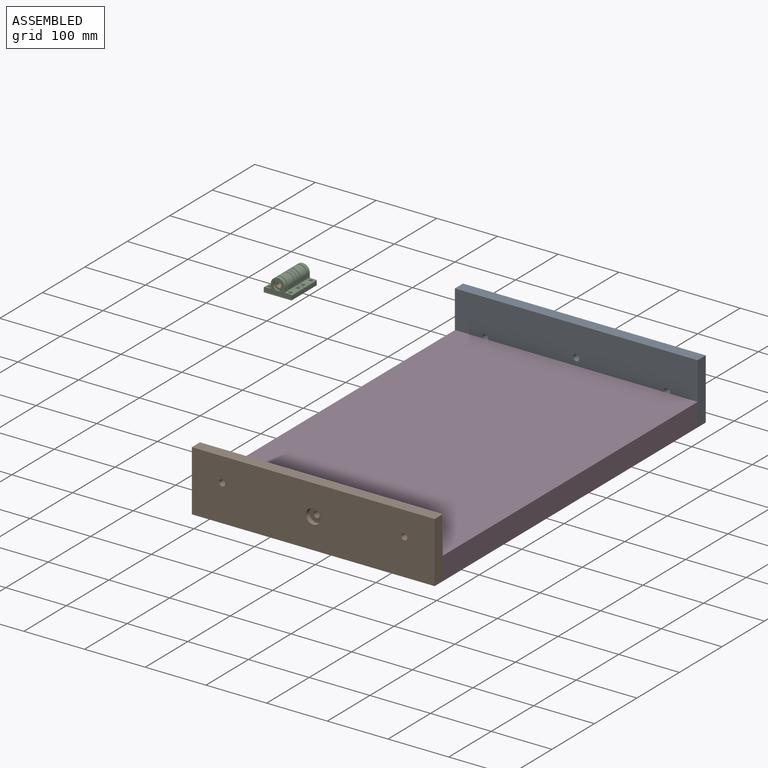
[diagram: assembled view]
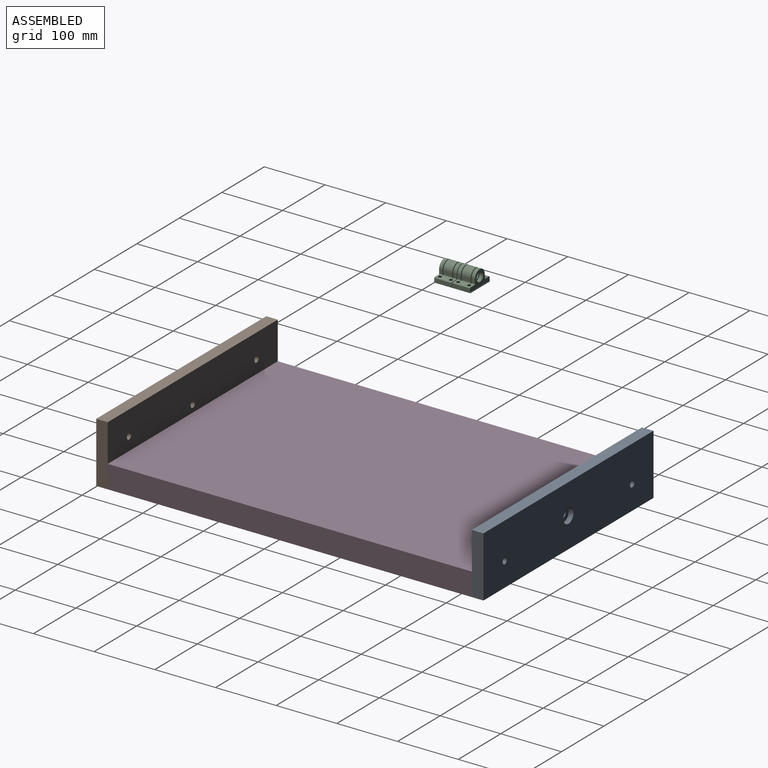
[diagram: assembled view, second angle]
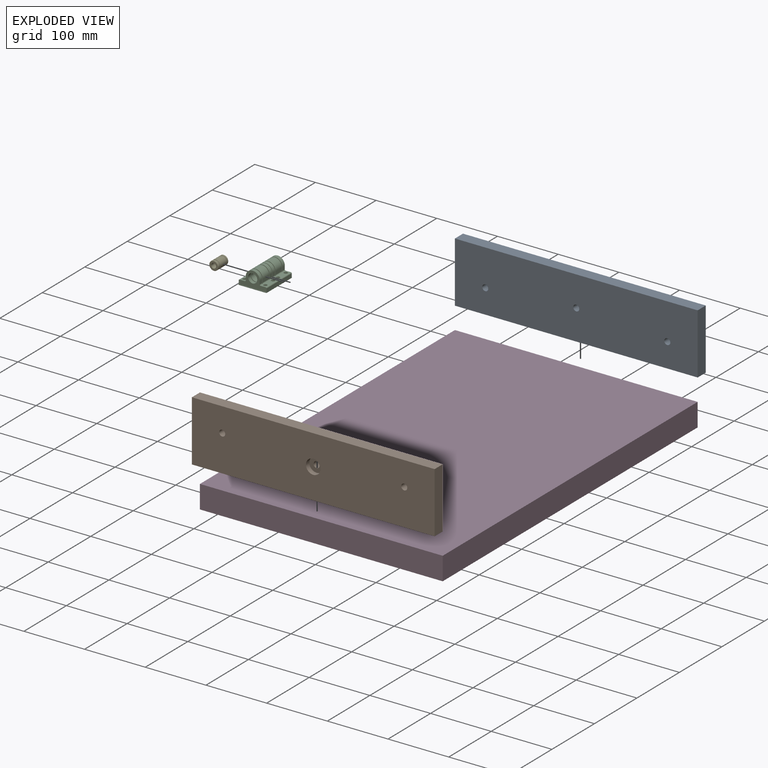
[diagram: exploded view]
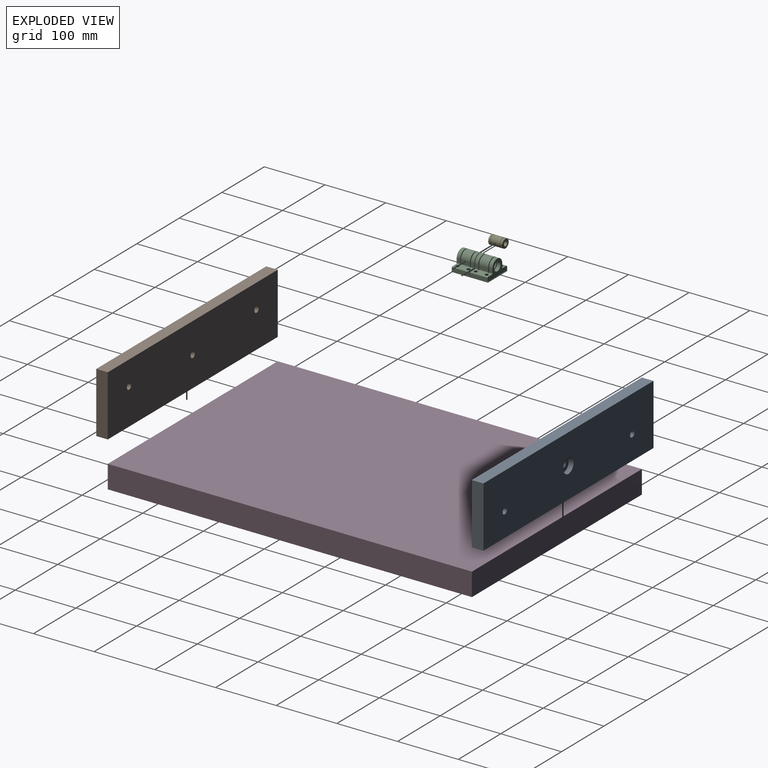
[diagram: exploded view, second angle]
ASSEMBLY  parts=5 mates=7
PART A: 11 faces, bbox 400x19x100 mm
  f0: cylinder r=5mm len=11mm, axis (0,1,0), area 345.6mm2, adj f8,f10
  f1: plane 400x19mm, normal (0,0,1), area 7600mm2, adj f2,f6,f7,f8
  f2: plane 100x19mm, normal (-1,0,0), area 1900mm2, adj f1,f3,f7,f8
  f3: plane 400x19mm, normal (0,0,-1), area 7600mm2, adj f2,f6,f7,f8
  f4: cylinder r=5mm len=19mm, axis (0,1,0), area 596.9mm2, adj f7,f8
  f5: cylinder r=5mm len=19mm, axis (0,1,0), area 596.9mm2, adj f7,f8
  f6: plane 100x19mm, normal (1,0,0), area 1900mm2, adj f1,f3,f7,f8
  f7: plane 400x100mm, normal (0,-1,0), area 39390.5mm2, adj f1,f2,f3,f4,f5,f6,f9
  f8: plane 400x100mm, normal (0,1,0), area 39764.4mm2, adj f0,f1,f2,f3,f4,f5,f6
  f9: cylinder r=12mm len=24mm, axis (0,-1,0), area 603.2mm2, adj f7,f10
  f10: plane 24x24mm, normal (0,-1,0), area 373.8mm2, adj f0,f9
PART B: same geometry as A
PART C: 128 faces, bbox 46x60x27.1 mm
  f0: plane 60x6.5mm, normal (1,0,0), area 379mm2, adj f5,f11,f19,f23,f24,f39,f40,f75
  f1: plane 6.03x5.75mm, normal (1,0,0), area 34.6mm2, adj f2,f4,f20,f24
  f2: cylinder r=11.53mm len=23.05mm, axis (0,-1,0), area 208.2mm2, adj f1,f20,f24,f42
  f3: cylinder r=7.52mm len=15.05mm, axis (0,-1,0), area 271.9mm2, adj f20,f24
  f4: cylinder r=1.5mm len=29mm, axis (0,-1,0), area 65.1mm2, adj f1,f7,f9,f20,f21,f22,f24,f25
  f5: plane 60x46mm, normal (0,0,-1), area 2570.9mm2, adj f0,f10,f11,f20,f21,f22,f28,f36
  f6: cylinder r=11.53mm len=23.05mm, axis (0,-1,0), area 539.5mm2, adj f7,f22,f38,f44
  f7: plane 14.9x6.03mm, normal (1,0,0), area 89.8mm2, adj f4,f6,f22,f38
  f8: cylinder r=7.52mm len=15.05mm, axis (0,-1,0), area 704.5mm2, adj f22,f38
  f9: plane 29x8.48mm, normal (0,0,1), area 192.4mm2, adj f4,f12,f13,f14,f15,f16,f17,f19
  f10: cylinder r=1.6mm len=3.2mm, axis (0,0,-1), area 30.2mm2, adj f5,f18
  f11: plane 46x1mm, normal (0,1,0), area 46mm2, adj f0,f5,f23,f41
  f12: plane 5x2.78mm, normal (-0.87,-0.5,0), area 16mm2, adj f9,f13,f17,f18
  f13: plane 5x3.2mm, normal (0,-1,0), area 16mm2, adj f9,f12,f14,f18
  f14: plane 5x2.78mm, normal (0.87,-0.5,0), area 16mm2, adj f9,f13,f15,f18
  f15: plane 5x2.78mm, normal (0.87,0.5,0), area 16mm2, adj f9,f14,f16,f18
  f16: plane 5x3.2mm, normal (0,1,0), area 16mm2, adj f9,f15,f17,f18
  f17: plane 5x2.78mm, normal (-0.87,0.5,0), area 16mm2, adj f9,f12,f16,f18
  f18: plane 6.41x5.55mm, normal (0,0,1), area 18.6mm2, adj f10,f12,f13,f14,f15,f16,f17
  f19: cylinder r=1.5mm len=29mm, axis (0,-1,0), area 68.3mm2, adj f0,f9,f24,f40
  f20: plane 27.05x24mm, normal (0,-1,0), area 396.9mm2, adj f1,f2,f3,f4,f5,f21,f42,f43
  f21: plane 8.41x1.3mm, normal (-1,0,0), area 10.9mm2, adj f4,f5,f20,f22
  f22: plane 27.05x24mm, normal (0,1,0), area 396.9mm2, adj f4,f5,f6,f7,f8,f21,f43,f44
  f23: plane 46x0.5mm, normal (0,0,1), area 23mm2, adj f0,f11,f24,f41
  f24: plane 46x26.05mm, normal (0,1,0), area 526.2mm2, adj f0,f1,f2,f3,f4,f9,f19,f23
  f25: plane 6.03x5.75mm, normal (1,0,0), area 34.6mm2, adj f4,f26,f36,f40
  f26: cylinder r=11.53mm len=23.05mm, axis (0,1,0), area 208.2mm2, adj f25,f36,f40,f56
  f27: cylinder r=7.52mm len=15.05mm, axis (0,1,0), area 271.9mm2, adj f36,f40
  f28: cylinder r=1.6mm len=3.2mm, axis (0,0,-1), area 30.2mm2, adj f5,f35
  f29: plane 5x2.78mm, normal (-0.87,0.5,0), area 16mm2, adj f9,f30,f34,f35
  f30: plane 5x3.2mm, normal (0,1,0), area 16mm2, adj f9,f29,f31,f35
  f31: plane 5x2.78mm, normal (0.87,0.5,0), area 16mm2, adj f9,f30,f32,f35
  f32: plane 5x2.78mm, normal (0.87,-0.5,0), area 16mm2, adj f9,f31,f33,f35
  f33: plane 5x3.2mm, normal (0,-1,0), area 16mm2, adj f9,f32,f34,f35
  f34: plane 5x2.78mm, normal (-0.87,-0.5,0), area 16mm2, adj f9,f29,f33,f35
  f35: plane 6.41x5.55mm, normal (0,0,1), area 18.6mm2, adj f28,f29,f30,f31,f32,f33,f34
  f36: plane 27.05x24mm, normal (0,1,0), area 396.9mm2, adj f4,f5,f25,f26,f27,f37,f43,f56
  f37: plane 8.41x1.3mm, normal (-1,0,0), area 10.9mm2, adj f4,f5,f36,f38
  f38: plane 27.05x24mm, normal (0,-1,0), area 396.9mm2, adj f4,f5,f6,f7,f8,f37,f43,f44
  f39: plane 46x1mm, normal (0,0,1), area 46mm2, adj f0,f40,f41,f103
  f40: plane 46x26.05mm, normal (0,-1,0), area 526.2mm2, adj f0,f4,f9,f19,f25,f26,f27,f39
  f41: plane 60x6.5mm, normal (-1,0,0), area 379mm2, adj f5,f11,f23,f24,f39,f40,f54,f75
  f42: plane 6.03x5.75mm, normal (-1,0,0), area 34.6mm2, adj f2,f20,f24,f43
  f43: cylinder r=1.5mm len=29mm, axis (0,-1,0), area 65.1mm2, adj f20,f22,f24,f36,f38,f40,f42,f44
  f44: plane 14.9x6.03mm, normal (-1,0,0), area 89.8mm2, adj f6,f22,f38,f43
  f45: plane 29x8.48mm, normal (0,0,1), area 192.4mm2, adj f24,f40,f43,f47,f48,f49,f50,f51
  f46: cylinder r=1.6mm len=3.2mm, axis (0,0,-1), area 30.2mm2, adj f5,f53
  f47: plane 5x2.78mm, normal (0.87,-0.5,0), area 16mm2, adj f45,f48,f52,f53
  f48: plane 5x3.2mm, normal (0,-1,0), area 16mm2, adj f45,f47,f49,f53
  f49: plane 5x2.78mm, normal (-0.87,-0.5,0), area 16mm2, adj f45,f48,f50,f53
  f50: plane 5x2.78mm, normal (-0.87,0.5,0), area 16mm2, adj f45,f49,f51,f53
  f51: plane 5x3.2mm, normal (0,1,0), area 16mm2, adj f45,f50,f52,f53
  f52: plane 5x2.78mm, normal (0.87,0.5,0), area 16mm2, adj f45,f47,f51,f53
  f53: plane 6.41x5.55mm, normal (0,0,1), area 18.6mm2, adj f46,f47,f48,f49,f50,f51,f52
  f54: cylinder r=1.5mm len=29mm, axis (0,-1,0), area 68.3mm2, adj f24,f40,f41,f45
  f55: plane 8.41x1.3mm, normal (1,0,0), area 10.9mm2, adj f5,f20,f22,f43
  f56: plane 6.03x5.75mm, normal (-1,0,0), area 34.6mm2, adj f26,f36,f40,f43
  f57: cylinder r=1.6mm len=3.2mm, axis (0,0,-1), area 30.2mm2, adj f5,f64
  f58: plane 5x2.78mm, normal (0.87,0.5,0), area 16mm2, adj f45,f59,f63,f64
  f59: plane 5x3.2mm, normal (0,1,0), area 16mm2, adj f45,f58,f60,f64
  f60: plane 5x2.78mm, normal (-0.87,0.5,0), area 16mm2, adj f45,f59,f61,f64
  f61: plane 5x2.78mm, normal (-0.87,-0.5,0), area 16mm2, adj f45,f60,f62,f64
  f62: plane 5x3.2mm, normal (0,-1,0), area 16mm2, adj f45,f61,f63,f64
  f63: plane 5x2.78mm, normal (0.87,-0.5,0), area 16mm2, adj f45,f58,f62,f64
  f64: plane 6.41x5.55mm, normal (0,0,1), area 18.6mm2, adj f57,f58,f59,f60,f61,f62,f63
  f65: plane 8.41x1.3mm, normal (1,0,0), area 10.9mm2, adj f5,f36,f38,f43
  f66: plane 6.03x5.75mm, normal (1,0,0), area 34.6mm2, adj f67,f69,f84,f88
  f67: cylinder r=11.53mm len=23.05mm, axis (0,1,0), area 208.2mm2, adj f66,f84,f88,f104
  f68: cylinder r=7.52mm len=15.05mm, axis (0,1,0), area 271.9mm2, adj f84,f88
  f69: cylinder r=1.5mm len=29mm, axis (0,1,0), area 65.1mm2, adj f66,f71,f73,f84,f85,f86,f88,f89
  f70: cylinder r=11.53mm len=23.05mm, axis (0,1,0), area 539.5mm2, adj f71,f86,f102,f106
  f71: plane 14.9x6.03mm, normal (1,0,0), area 89.8mm2, adj f69,f70,f86,f102
  f72: cylinder r=7.52mm len=15.05mm, axis (0,1,0), area 704.5mm2, adj f86,f102
  f73: plane 29x8.48mm, normal (0,0,1), area 192.4mm2, adj f69,f76,f77,f78,f79,f80,f81,f83
  f74: cylinder r=1.6mm len=3.2mm, axis (0,0,-1), area 30.2mm2, adj f5,f82
  f75: plane 46x1mm, normal (0,-1,0), area 46mm2, adj f0,f5,f41,f87
  f76: plane 5x2.78mm, normal (-0.87,0.5,0), area 16mm2, adj f73,f77,f81,f82
  f77: plane 5x3.2mm, normal (0,1,0), area 16mm2, adj f73,f76,f78,f82
  f78: plane 5x2.78mm, normal (0.87,0.5,0), area 16mm2, adj f73,f77,f79,f82
  f79: plane 5x2.78mm, normal (0.87,-0.5,0), area 16mm2, adj f73,f78,f80,f82
  f80: plane 5x3.2mm, normal (0,-1,0), area 16mm2, adj f73,f79,f81,f82
  f81: plane 5x2.78mm, normal (-0.87,-0.5,0), area 16mm2, adj f73,f76,f80,f82
  f82: plane 6.41x5.55mm, normal (0,0,1), area 18.6mm2, adj f74,f76,f77,f78,f79,f80,f81
  f83: cylinder r=1.5mm len=29mm, axis (0,1,0), area 68.3mm2, adj f0,f73,f88,f103
  f84: plane 27.05x24mm, normal (0,1,0), area 396.9mm2, adj f5,f66,f67,f68,f69,f85,f104,f105
  f85: plane 8.41x1.3mm, normal (-1,0,0), area 10.9mm2, adj f5,f69,f84,f86
  f86: plane 27.05x24mm, normal (0,-1,0), area 396.9mm2, adj f5,f69,f70,f71,f72,f85,f105,f106
  f87: plane 46x0.5mm, normal (0,0,1), area 23mm2, adj f0,f41,f75,f88
  f88: plane 46x26.05mm, normal (0,-1,0), area 526.2mm2, adj f0,f41,f66,f67,f68,f69,f73,f83
  f89: plane 6.03x5.75mm, normal (1,0,0), area 34.6mm2, adj f69,f90,f100,f103
  f90: cylinder r=11.53mm len=23.05mm, axis (0,-1,0), area 208.2mm2, adj f89,f100,f103,f118
  f91: cylinder r=7.52mm len=15.05mm, axis (0,-1,0), area 271.9mm2, adj f100,f103
  f92: cylinder r=1.6mm len=3.2mm, axis (0,0,-1), area 30.2mm2, adj f5,f99
  f93: plane 5x2.78mm, normal (-0.87,-0.5,0), area 16mm2, adj f73,f94,f98,f99
  f94: plane 5x3.2mm, normal (0,-1,0), area 16mm2, adj f73,f93,f95,f99
  f95: plane 5x2.78mm, normal (0.87,-0.5,0), area 16mm2, adj f73,f94,f96,f99
  f96: plane 5x2.78mm, normal (0.87,0.5,0), area 16mm2, adj f73,f95,f97,f99
  f97: plane 5x3.2mm, normal (0,1,0), area 16mm2, adj f73,f96,f98,f99
  f98: plane 5x2.78mm, normal (-0.87,0.5,0), area 16mm2, adj f73,f93,f97,f99
  f99: plane 6.41x5.55mm, normal (0,0,1), area 18.6mm2, adj f92,f93,f94,f95,f96,f97,f98
  f100: plane 27.05x24mm, normal (0,-1,0), area 396.9mm2, adj f5,f69,f89,f90,f91,f101,f105,f118
  f101: plane 8.41x1.3mm, normal (-1,0,0), area 10.9mm2, adj f5,f69,f100,f102
  f102: plane 27.05x24mm, normal (0,1,0), area 396.9mm2, adj f5,f69,f70,f71,f72,f101,f105,f106
  f103: plane 46x26.05mm, normal (0,1,0), area 526.2mm2, adj f0,f39,f41,f69,f73,f83,f89,f90
  f104: plane 6.03x5.75mm, normal (-1,0,0), area 34.6mm2, adj f67,f84,f88,f105
  f105: cylinder r=1.5mm len=29mm, axis (0,1,0), area 65.1mm2, adj f84,f86,f88,f100,f102,f103,f104,f106
  f106: plane 14.9x6.03mm, normal (-1,0,0), area 89.8mm2, adj f70,f86,f102,f105
  f107: plane 29x8.48mm, normal (0,0,1), area 192.4mm2, adj f88,f103,f105,f109,f110,f111,f112,f113
  f108: cylinder r=1.6mm len=3.2mm, axis (0,0,-1), area 30.2mm2, adj f5,f115
  f109: plane 5x2.78mm, normal (0.87,0.5,0), area 16mm2, adj f107,f110,f114,f115
  f110: plane 5x3.2mm, normal (0,1,0), area 16mm2, adj f107,f109,f111,f115
  f111: plane 5x2.78mm, normal (-0.87,0.5,0), area 16mm2, adj f107,f110,f112,f115
  f112: plane 5x2.78mm, normal (-0.87,-0.5,0), area 16mm2, adj f107,f111,f113,f115
  f113: plane 5x3.2mm, normal (0,-1,0), area 16mm2, adj f107,f112,f114,f115
  f114: plane 5x2.78mm, normal (0.87,-0.5,0), area 16mm2, adj f107,f109,f113,f115
  f115: plane 6.41x5.55mm, normal (0,0,1), area 18.6mm2, adj f108,f109,f110,f111,f112,f113,f114
  f116: cylinder r=1.5mm len=29mm, axis (0,1,0), area 68.3mm2, adj f41,f88,f103,f107
  f117: plane 8.41x1.3mm, normal (1,0,0), area 10.9mm2, adj f5,f84,f86,f105
  f118: plane 6.03x5.75mm, normal (-1,0,0), area 34.6mm2, adj f90,f100,f103,f105
  f119: cylinder r=1.6mm len=3.2mm, axis (0,0,-1), area 30.2mm2, adj f5,f126
  f120: plane 5x2.78mm, normal (0.87,-0.5,0), area 16mm2, adj f107,f121,f125,f126
  f121: plane 5x3.2mm, normal (0,-1,0), area 16mm2, adj f107,f120,f122,f126
  f122: plane 5x2.78mm, normal (-0.87,-0.5,0), area 16mm2, adj f107,f121,f123,f126
  f123: plane 5x2.78mm, normal (-0.87,0.5,0), area 16mm2, adj f107,f122,f124,f126
  f124: plane 5x3.2mm, normal (0,1,0), area 16mm2, adj f107,f123,f125,f126
  f125: plane 5x2.78mm, normal (0.87,0.5,0), area 16mm2, adj f107,f120,f124,f126
  f126: plane 6.41x5.55mm, normal (0,0,1), area 18.6mm2, adj f119,f120,f121,f122,f123,f124,f125
  f127: plane 8.41x1.3mm, normal (1,0,0), area 10.9mm2, adj f5,f100,f102,f105
PART D: 6 faces, bbox 400x600x38 mm
  f0: plane 400x38mm, normal (0,1,0), area 15200mm2, adj f1,f3,f4,f5
  f1: plane 600x38mm, normal (-1,0,0), area 22800mm2, adj f0,f2,f4,f5
  f2: plane 400x38mm, normal (0,-1,0), area 15200mm2, adj f1,f3,f4,f5
  f3: plane 600x38mm, normal (1,0,0), area 22800mm2, adj f0,f2,f4,f5
  f4: plane 600x400mm, normal (0,0,1), area 240000mm2, adj f0,f1,f2,f3
  f5: plane 600x400mm, normal (0,0,-1), area 240000mm2, adj f0,f1,f2,f3
PART E: 14 faces, bbox 15x24x15 mm
  f0: plane 14x14mm, normal (0,1,0), area 103.7mm2, adj f6,f7
  f1: cylinder r=7.5mm len=15mm, axis (0,-1,0), area 129.6mm2, adj f2,f7
  f2: plane 15x15mm, normal (0,-1,0), area 22.8mm2, adj f1,f3
  f3: cylinder r=7mm len=14mm, axis (0,-1,0), area 57.2mm2, adj f2,f4
  f4: plane 15x15mm, normal (0,1,0), area 22.8mm2, adj f3,f5
  f5: cylinder r=7.5mm len=15mm, axis (0,-1,0), area 702.1mm2, adj f4,f12
  f6: cylinder r=4mm len=24mm, axis (0,-1,0), area 603.2mm2, adj f0,f8
  f7: cone r=7.5mm half-angle=45deg, axis (0,-1,0), area 32.2mm2, adj f0,f1
  f8: plane 14x14mm, normal (0,-1,0), area 103.7mm2, adj f6,f13
  f9: cylinder r=7.5mm len=15mm, axis (0,1,0), area 129.6mm2, adj f10,f13
  f10: plane 15x15mm, normal (0,1,0), area 22.8mm2, adj f9,f11
  f11: cylinder r=7mm len=14mm, axis (0,1,0), area 57.2mm2, adj f10,f12
  f12: plane 15x15mm, normal (0,-1,0), area 22.8mm2, adj f5,f11
  f13: cone r=7.5mm half-angle=45deg, axis (0,1,0), area 32.2mm2, adj f8,f9
PLACE A rot(axis=(1,0,0),180deg) t=(-13.23,533.18,156.05)mm
PLACE B t=(-13.23,-66.82,56.05)mm
PLACE C t=(-55.9,221.7,268.97)mm
PLACE D t=(-13.23,-66.82,56.05)mm
PLACE E t=(-55.9,191.72,284.49)mm
MATE planar D.f5 <-> B.f3  axis (0,0,-1) through (186.77,233.18,56.05)mm
MATE cylindrical E.f1 <-> C.f2  axis (0,-1,0) through (-55.9,191.72,284.49)mm
MATE planar A.f1 <-> D.f5  axis (0,0,-1) through (186.77,542.68,56.05)mm
MATE planar D.f3 <-> B.f6  axis (1,0,0) through (386.77,233.18,75.05)mm
MATE planar D.f3 <-> A.f6  axis (1,0,0) through (386.77,533.18,75.05)mm
MATE planar D.f2 <-> B.f8  axis (0,-1,0) through (186.77,-66.82,75.05)mm
MATE planar A.f8 <-> D.f0  axis (0,-1,0) through (186.77,533.18,56.05)mm
